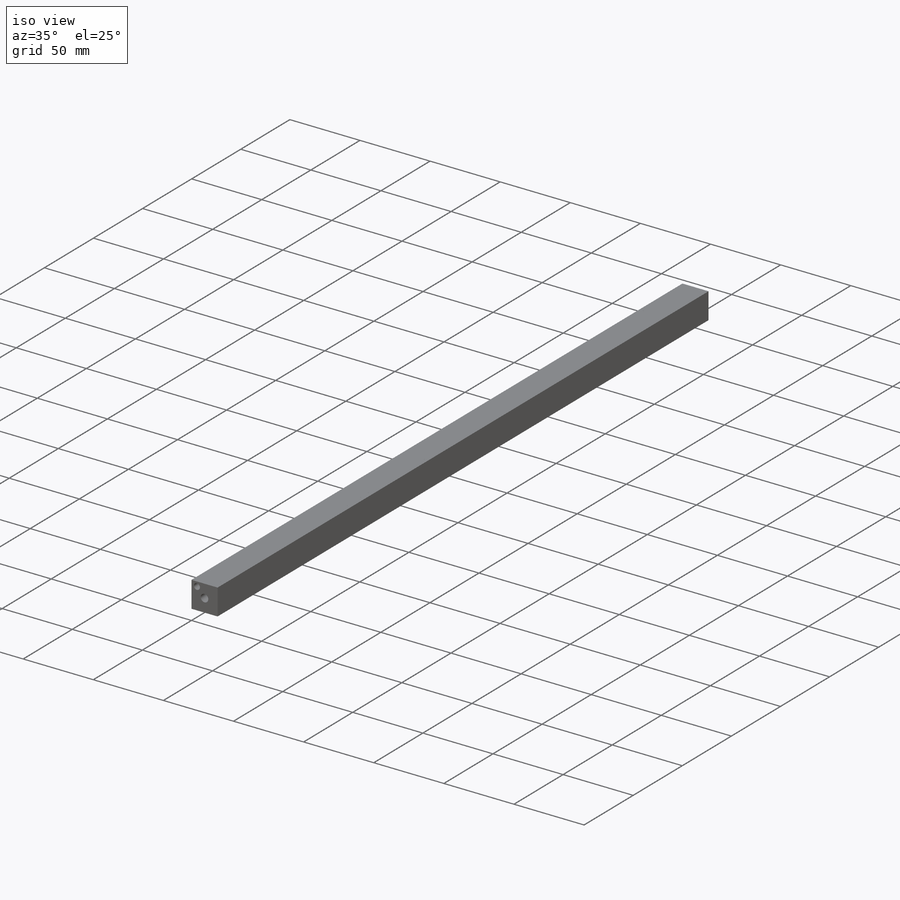
[diagram: iso view]
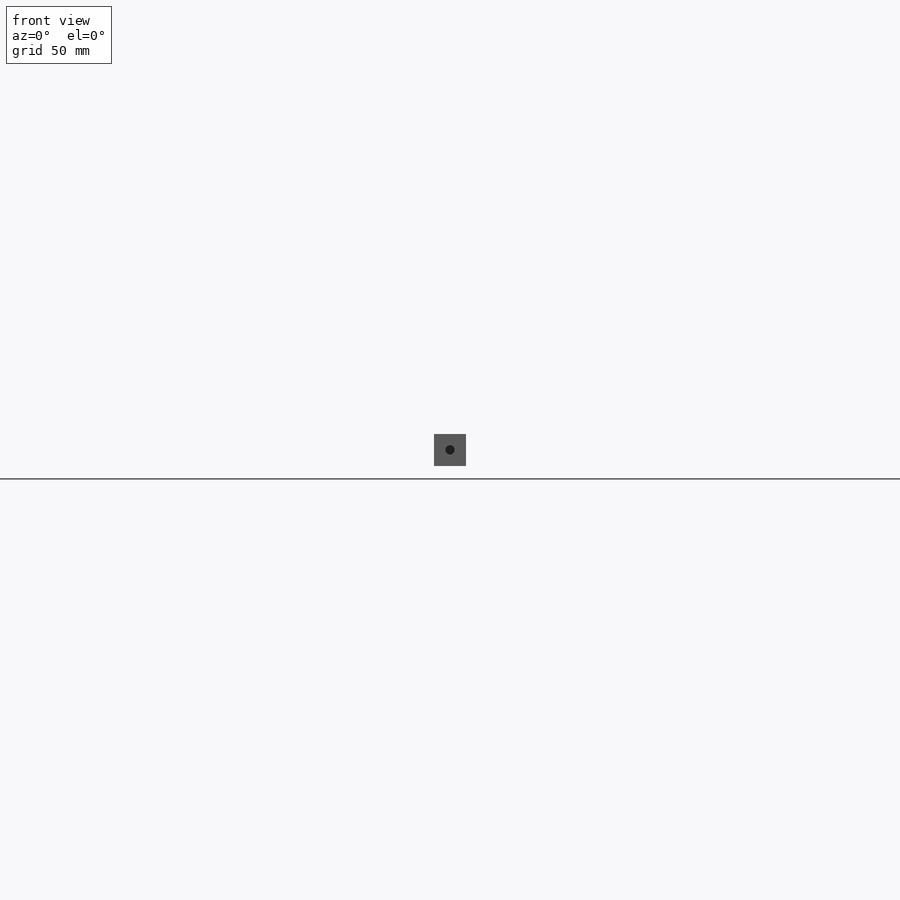
[diagram: front view]
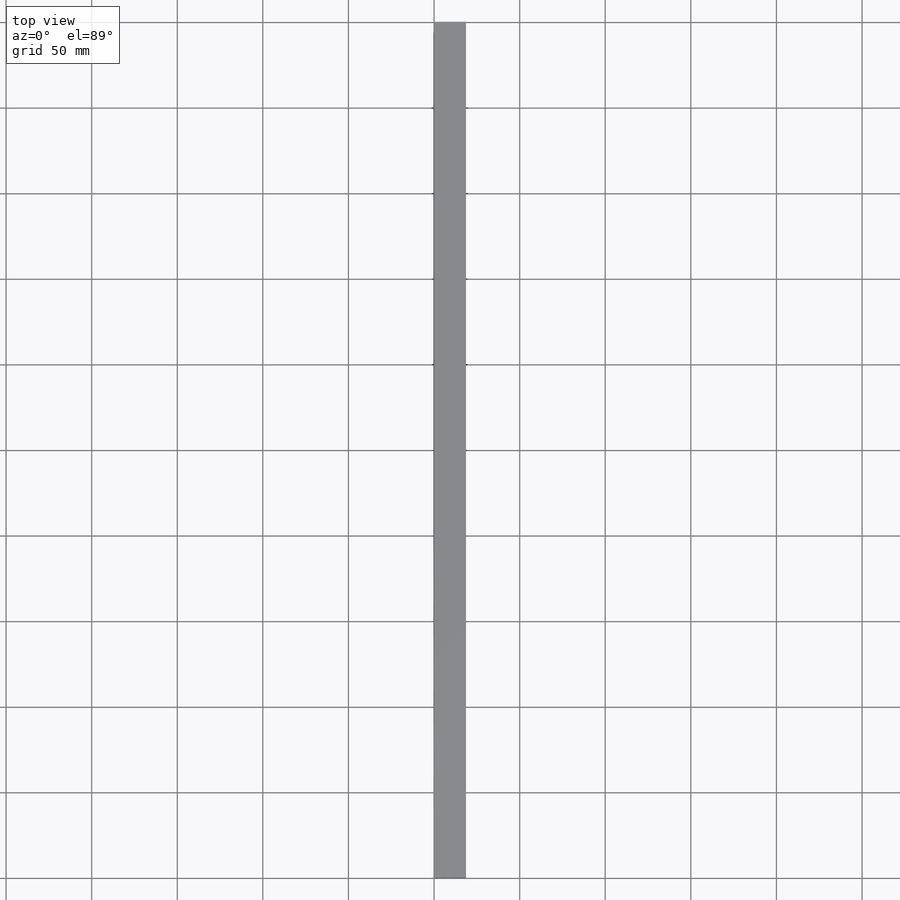
[diagram: top view]
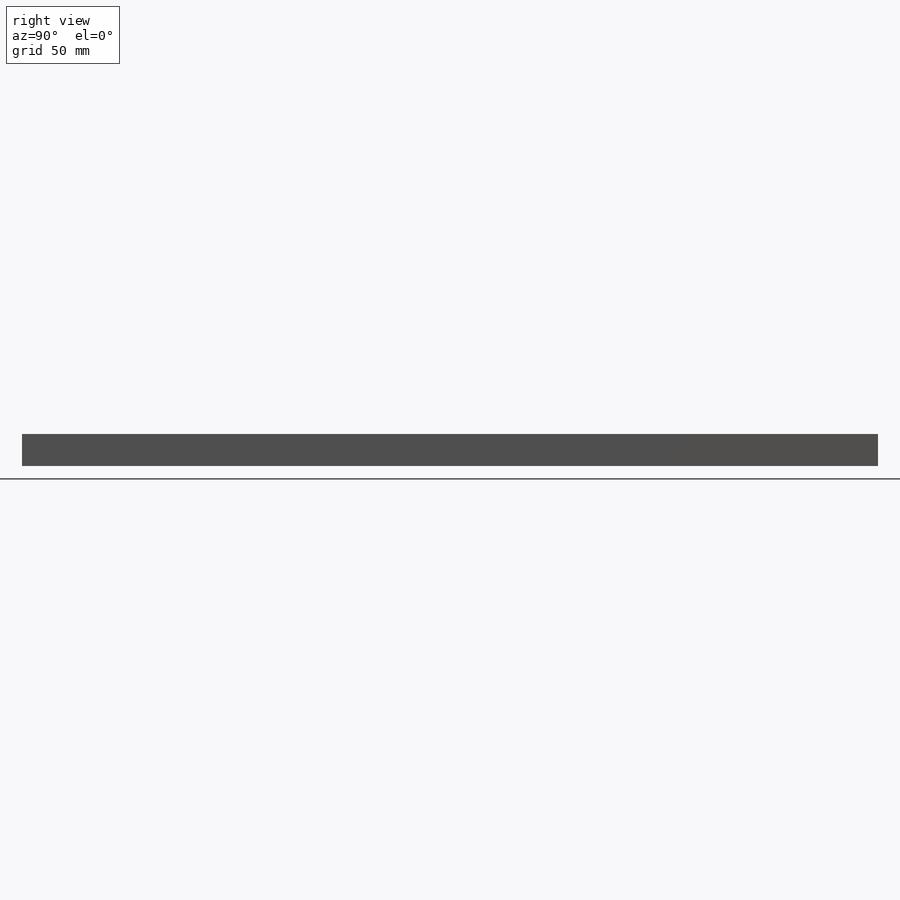
[diagram: right view]
SOLIDWORKS PART (.sldprt)
format: sldprt  version: not decoded by parser v0  size: 229,888 bytes
history: native  units: mm
features: sketch x7, cut_extrude x5, extrude x2, material x1 (+16 scaffold rows collapsed)
feature tree (31):
  scaffold x16  (default folders/planes/origin — collapsed)
  material  "1060 Alloy"
  sketch  "Sketch1"  dims[D1=18.63mm]
  extrude  "Boss-Extrude1"  Depth=500mm
  sketch  "Sketch2"  dims[D1=5.42mm]
  cut_extrude  "Cut-Extrude1"  Depth=24mm
  sketch  "Sketch3"  dims[D1=0.0mm]
  cut_extrude  "Cut-Extrude2"  Depth=24mm
  sketch  "Sketch4"  dims[D1=3.34mm]
  cut_extrude  "Cut-Extrude3"  Depth=10mm
  sketch  "Sketch5"  dims[D1=3.34mm D2=3.18mm D3=14.285mm]
  cut_extrude  "Cut-Extrude4"  Depth=10mm
  sketch  "Sketch6"  dims[D1=12.7mm]
  cut_extrude  "Cut-Extrude5"  Depth=0.5mm
  sketch  "Sketch7"  dims[D1=12.7mm]
  extrude  "Boss-Extrude2"  [1 undecoded]
decode coverage: 13 of 14 modeling features carry decoded parameters
note: 1 parameter value undecoded
note: suppression state not decoded; provenance and decode notes live in map.json
